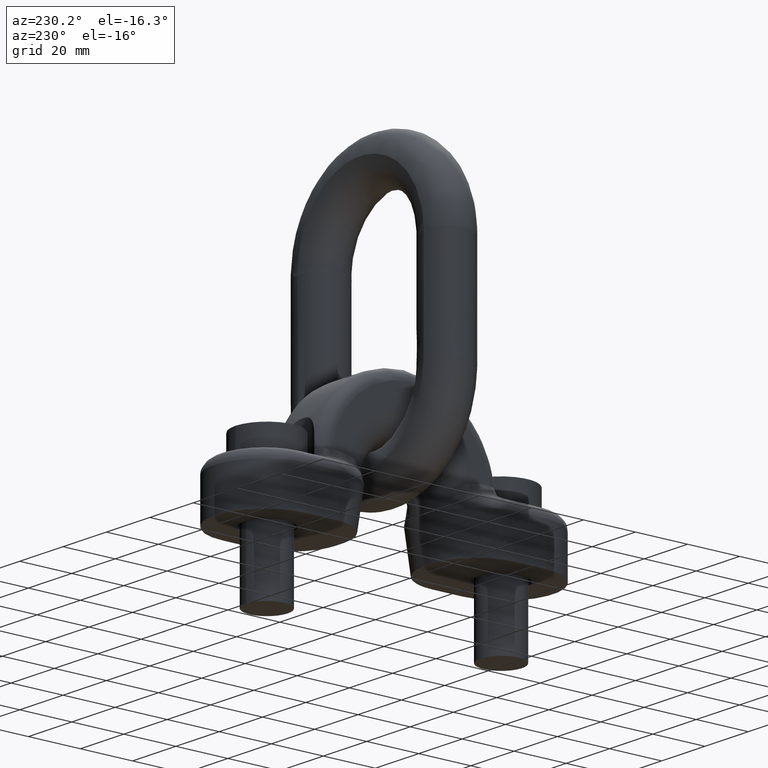
[diagram: clean part render]
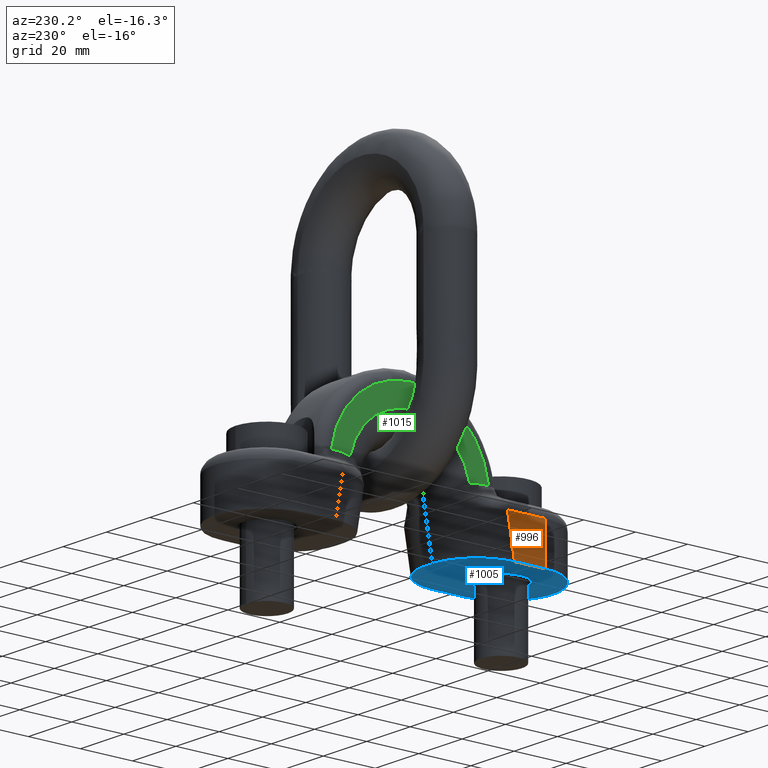
[diagram: same view with three faces highlighted in distinct colors, each labeled with its STEP entity id]
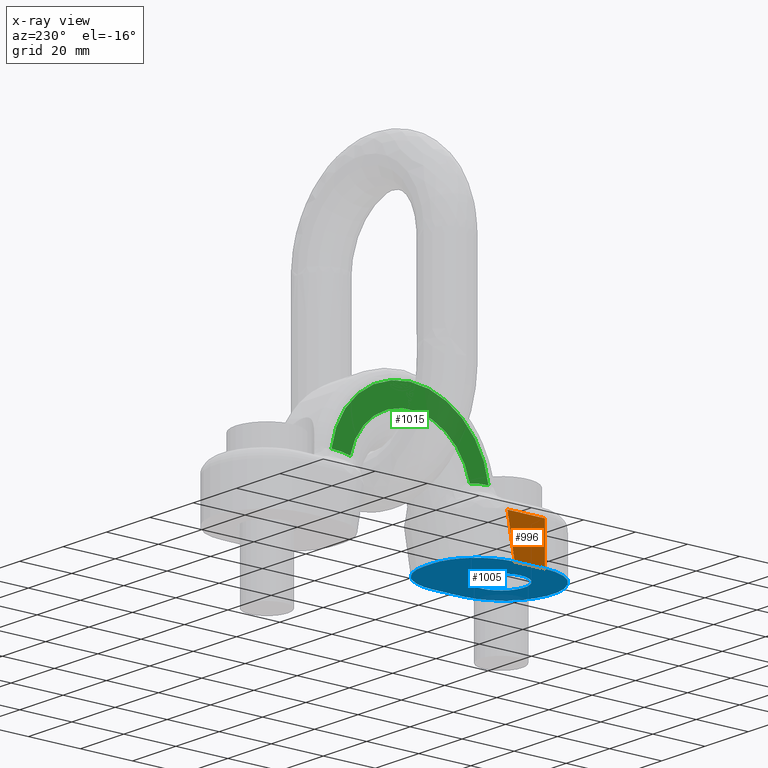
[diagram: x-ray of the same camera — body ghosted, the three highlighted faces saturated]
A machine part, auxiliary view with three faces highlighted in distinct colors.
The next image is the same camera in x-ray (body ghosted, the three faces saturated) — at least one of them is partly hidden behind the body in this view.
Their STEP definitions:

[orange] entity #996 — the highlighted planar face has unit normal (1, 0, 0).
#744=PLANE('',#3597);
#844=FACE_OUTER_BOUND('',#1541,.T.);
#996=ADVANCED_FACE('',(#844),#744,.F.);
#1207=LINE('',#5246,#1321);
#1208=LINE('',#5249,#1322);
#1209=LINE('',#5251,#1323);
#1210=LINE('',#5253,#1324);
#1321=VECTOR('',#3846,1.);
#1322=VECTOR('',#3847,1.);
#1323=VECTOR('',#3848,1.);
#1324=VECTOR('',#3849,1.);
#1541=EDGE_LOOP('',(#2152,#2153,#2154,#2155));
#2152=ORIENTED_EDGE('',*,*,#3230,.F.);
#2153=ORIENTED_EDGE('',*,*,#3231,.T.);
#2154=ORIENTED_EDGE('',*,*,#3232,.T.);
#2155=ORIENTED_EDGE('',*,*,#3233,.T.);
#2960=VERTEX_POINT('',#5247);
#2961=VERTEX_POINT('',#5248);
#2962=VERTEX_POINT('',#5250);
#2963=VERTEX_POINT('',#5252);
#3230=EDGE_CURVE('',#2960,#2961,#1207,.T.);
#3231=EDGE_CURVE('',#2960,#2962,#1208,.T.);
#3232=EDGE_CURVE('',#2962,#2963,#1209,.T.);
#3233=EDGE_CURVE('',#2963,#2961,#1210,.T.);
#3597=AXIS2_PLACEMENT_3D('',#5254,#3850,#3851);
#3846=DIRECTION('',(0.,0.,-1.));
#3847=DIRECTION('',(0.,1.,-5.78241158658936E-16));
#3848=DIRECTION('',(0.,-0.17364817766693,-0.984807753012208));
#3849=DIRECTION('',(0.,-1.,0.));
#3850=DIRECTION('',(1.,0.,0.));
#3851=DIRECTION('',(0.,0.,-1.));
#5246=CARTESIAN_POINT('',(-19.,-46.,112.));
#5247=CARTESIAN_POINT('',(-19.,-46.,15.5));
#5248=CARTESIAN_POINT('',(-19.,-46.,0.));
#5249=CARTESIAN_POINT('',(-19.,45.9999999999999,15.4999999999999));
#5250=CARTESIAN_POINT('',(-19.,-31.6010352658292,15.5));
#5251=CARTESIAN_POINT('',(-19.,-33.8105209800729,2.96938383810451));
#5252=CARTESIAN_POINT('',(-19.,-34.3341034668104,0.));
#5253=CARTESIAN_POINT('',(-19.,46.,0.));
#5254=CARTESIAN_POINT('',(-19.,46.,112.));

[blue] entity #1005 — the highlighted planar face has unit normal (0, 0, 1).
#747=PLANE('',#3624);
#1005=ADVANCED_FACE('',(#1481,#1482),#747,.F.);
#1210=LINE('',#5253,#1324);
#1218=LINE('',#5285,#1332);
#1227=LINE('',#5321,#1341);
#1324=VECTOR('',#3849,1.);
#1332=VECTOR('',#3881,1.);
#1341=VECTOR('',#3918,1.);
#1481=FACE_BOUND('',#1550,.T.);
#1482=FACE_BOUND('',#1551,.T.);
#1550=EDGE_LOOP('',(#2196));
#1551=EDGE_LOOP('',(#2197,#2198,#2199,#2200,#2201,#2202));
#1994=CIRCLE('',#3622,9.);
#1995=CIRCLE('',#3623,19.);
#2196=ORIENTED_EDGE('',*,*,#3266,.F.);
#2197=ORIENTED_EDGE('',*,*,#3233,.F.);
#2198=ORIENTED_EDGE('',*,*,#3245,.T.);
#2199=ORIENTED_EDGE('',*,*,#3267,.F.);
#2200=ORIENTED_EDGE('',*,*,#3264,.T.);
#2201=ORIENTED_EDGE('',*,*,#3249,.F.);
#2202=ORIENTED_EDGE('',*,*,#3268,.F.);
#2961=VERTEX_POINT('',#5248);
#2963=VERTEX_POINT('',#5252);
#2971=VERTEX_POINT('',#5275);
#2972=VERTEX_POINT('',#5279);
#2975=VERTEX_POINT('',#5284);
#2987=VERTEX_POINT('',#5316);
#2988=VERTEX_POINT('',#5320);
#3233=EDGE_CURVE('',#2963,#2961,#1210,.T.);
#3245=EDGE_CURVE('',#2963,#2971,#3553,.T.);
#3249=EDGE_CURVE('',#2975,#2972,#1218,.T.);
#3264=EDGE_CURVE('',#2987,#2972,#3557,.T.);
#3266=EDGE_CURVE('',#2988,#2988,#1994,.T.);
#3267=EDGE_CURVE('',#2987,#2971,#1227,.T.);
#3268=EDGE_CURVE('',#2961,#2975,#1995,.T.);
#3553=ELLIPSE('',#3607,17.3637950632462,17.1);
#3557=ELLIPSE('',#3620,17.3637950632462,17.1);
#3607=AXIS2_PLACEMENT_3D('',#5276,#3874,#3875);
#3620=AXIS2_PLACEMENT_3D('',#5315,#3911,#3912);
#3622=AXIS2_PLACEMENT_3D('',#5319,#3916,#3917);
#3623=AXIS2_PLACEMENT_3D('',#5322,#3919,#3920);
#3624=AXIS2_PLACEMENT_3D('',#5323,#3921,#3922);
#3849=DIRECTION('',(0.,-1.,0.));
#3874=DIRECTION('',(0.,0.,-1.));
#3875=DIRECTION('',(0.,-1.,0.));
#3881=DIRECTION('',(0.,1.,0.));
#3911=DIRECTION('',(0.,0.,-1.));
#3912=DIRECTION('',(0.,1.,0.));
#3916=DIRECTION('',(0.,0.,-1.));
#3917=DIRECTION('',(1.,0.,0.));
#3918=DIRECTION('',(-1.,0.,0.));
#3919=DIRECTION('',(0.,0.,1.));
#3920=DIRECTION('',(6.12323399573677E-17,1.,0.));
#3921=DIRECTION('',(0.,0.,1.));
#3922=DIRECTION('',(1.,0.,0.));
#5248=CARTESIAN_POINT('',(-19.,-46.,0.));
#5252=CARTESIAN_POINT('',(-19.,-34.3341034668104,0.));
#5253=CARTESIAN_POINT('',(-19.,46.,0.));
#5275=CARTESIAN_POINT('',(-1.89999999999999,-16.9703084035642,0.));
#5276=CARTESIAN_POINT('',(-1.89999999999999,-34.3341034668104,0.));
#5279=CARTESIAN_POINT('',(19.,-34.3341034668104,0.));
#5284=CARTESIAN_POINT('',(19.,-46.,0.));
#5285=CARTESIAN_POINT('',(19.,-46.,0.));
#5315=CARTESIAN_POINT('',(1.89999999999999,-34.3341034668104,0.));
#5316=CARTESIAN_POINT('',(1.89999999999999,-16.9703084035642,0.));
#5319=CARTESIAN_POINT('',(0.,-45.,0.));
#5320=CARTESIAN_POINT('',(9.,-45.,0.));
#5321=CARTESIAN_POINT('',(41.8185911984678,-16.9703084035642,0.));
#5322=CARTESIAN_POINT('',(-6.93889390390723E-15,-46.,0.));
#5323=CARTESIAN_POINT('',(38.,-65.,0.));

[green] entity #1015 — the highlighted planar face has unit normal (-1, 0, 0).
#754=PLANE('',#3646);
#859=FACE_OUTER_BOUND('',#1564,.T.);
#1015=ADVANCED_FACE('',(#859),#754,.T.);
#1564=EDGE_LOOP('',(#2248,#2249,#2250,#2251));
#1796=B_SPLINE_CURVE_WITH_KNOTS('',3,(#5383,#5384,#5385,#5386),
 .UNSPECIFIED.,.F.,.F.,(4,4),(0.,1.),.UNSPECIFIED.);
#1797=B_SPLINE_CURVE_WITH_KNOTS('',3,(#5387,#5388,#5389,#5390),
 .UNSPECIFIED.,.F.,.F.,(4,4),(0.,1.),.UNSPECIFIED.);
#1982=CIRCLE('',#3590,30.5);
#2007=CIRCLE('',#3645,23.5007042602805);
#2248=ORIENTED_EDGE('',*,*,#3291,.T.);
#2249=ORIENTED_EDGE('',*,*,#3292,.T.);
#2250=ORIENTED_EDGE('',*,*,#3207,.T.);
#2251=ORIENTED_EDGE('',*,*,#3293,.T.);
#2940=VERTEX_POINT('',#5127);
#2941=VERTEX_POINT('',#5129);
#3002=VERTEX_POINT('',#5381);
#3003=VERTEX_POINT('',#5382);
#3207=EDGE_CURVE('',#2941,#2940,#1982,.T.);
#3291=EDGE_CURVE('',#3002,#3003,#2007,.T.);
#3292=EDGE_CURVE('',#3003,#2941,#1796,.T.);
#3293=EDGE_CURVE('',#2940,#3002,#1797,.T.);
#3590=AXIS2_PLACEMENT_3D('',#5128,#3828,#3829);
#3645=AXIS2_PLACEMENT_3D('',#5380,#3970,#3971);
#3646=AXIS2_PLACEMENT_3D('',#5391,#3972,#3973);
#3828=DIRECTION('',(-1.,9.91270557701032E-17,0.));
#3829=DIRECTION('',(-1.13752359080446E-16,-1.,0.));
#3970=DIRECTION('',(1.,-9.91270557701032E-17,0.));
#3971=DIRECTION('',(-7.38158081036208E-17,-1.,0.));
#3972=DIRECTION('',(-1.,9.91270557701032E-17,0.));
#3973=DIRECTION('',(-9.8879238130678E-17,-1.,0.));
#5127=CARTESIAN_POINT('',(-12.,30.2010554130451,24.2598417738432));
#5128=CARTESIAN_POINT('',(-12.,4.46071750965465E-16,20.));
#5129=CARTESIAN_POINT('',(-12.,-30.2010554130451,24.2598417738432));
#5380=CARTESIAN_POINT('',(-12.,1.00118326327804E-15,18.5));
#5381=CARTESIAN_POINT('',(-12.,22.983303149139,23.4041693571841));
#5382=CARTESIAN_POINT('',(-12.,-22.983303149139,23.4041693571841));
#5383=CARTESIAN_POINT('',(-12.,-22.983303149139,23.4041693571841));
#5384=CARTESIAN_POINT('',(-12.,-25.3467934560171,24.0472739129473));
#5385=CARTESIAN_POINT('',(-12.,-27.7676488639211,24.2064934214227));
#5386=CARTESIAN_POINT('',(-12.,-30.2010554130451,24.2598417738432));
#5387=CARTESIAN_POINT('',(-12.,30.2010554130451,24.2598417738432));
#5388=CARTESIAN_POINT('',(-12.,27.7676488639211,24.2064934214227));
#5389=CARTESIAN_POINT('',(-12.,25.3467934560171,24.0472739129473));
#5390=CARTESIAN_POINT('',(-12.,22.983303149139,23.4041693571841));
#5391=CARTESIAN_POINT('',(-12.,-35.,141.489790593362));